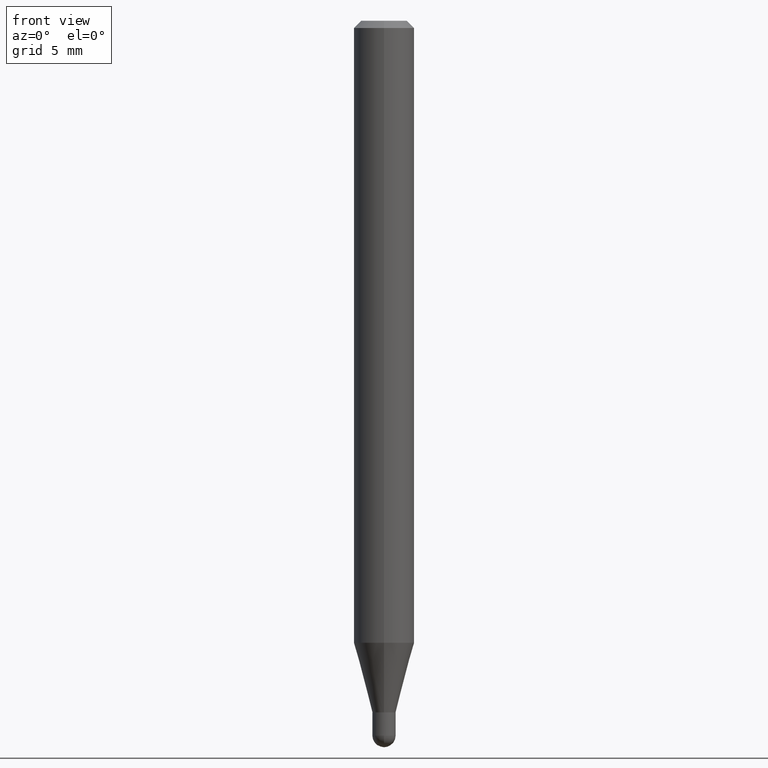
[diagram: clean part render]
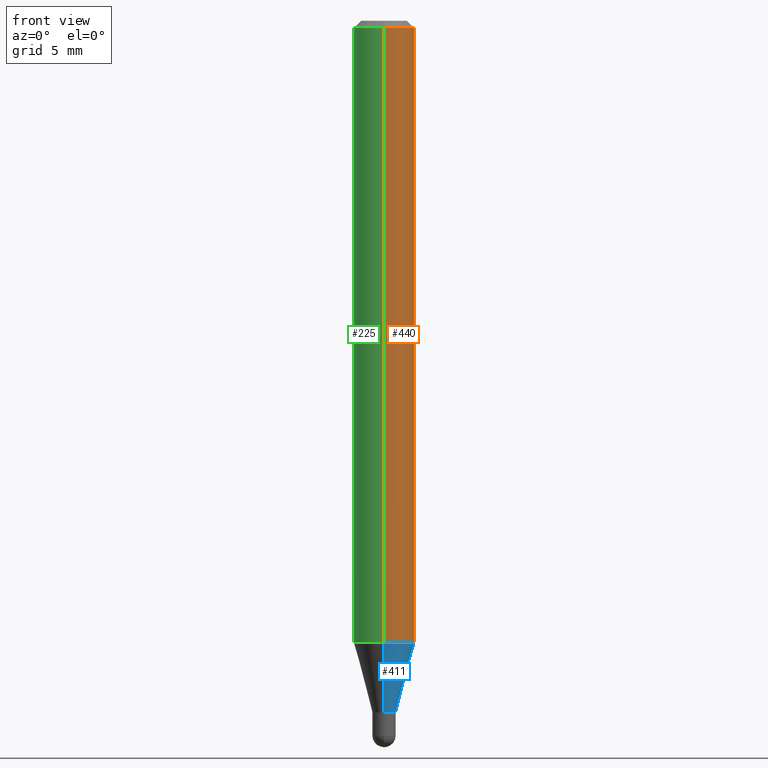
[diagram: same view with three faces highlighted in distinct colors, each labeled with its STEP entity id]
A machine part, front view with three faces highlighted in distinct colors.
Their STEP definitions:

[orange] entity #440 — the highlighted cylindrical surface (edge-blend (fillet) strip) has radius 1.5875 mm, axis along (-0, 0, 1).
#51 = DIRECTION ( 'NONE',  ( -2.445464073693033846E-29, 3.491488116041193257E-15, 1.000000000000000000 ) ) ;
#53 = ORIENTED_EDGE ( 'NONE', *, *, #334, .T. ) ;
#56 = AXIS2_PLACEMENT_3D ( 'NONE', #116, #495, #339 ) ;
#74 = VERTEX_POINT ( 'NONE', #78 ) ;
#78 = CARTESIAN_POINT ( 'NONE',  ( 4.440892098500941706E-16, 0.06249999999999995143, -0.01500000000000022669 ) ) ;
#85 = CIRCLE ( 'NONE', #56, 0.06250000000000000000 ) ;
#89 = CARTESIAN_POINT ( 'NONE',  ( -4.364351673553916201E-16, -0.06250000000000000000, 2.182180072525745786E-16 ) ) ;
#96 = DIRECTION ( 'NONE',  ( -6.982962677686265922E-15, -1.000000000000000000, 3.491488116041193257E-15 ) ) ;
#102 = EDGE_LOOP ( 'NONE', ( #212, #53, #143, #117 ) ) ;
#116 = CARTESIAN_POINT ( 'NONE',  ( 3.668196110539553397E-31, -5.237232174061793509E-17, -0.01500000000000000812 ) ) ;
#117 = ORIENTED_EDGE ( 'NONE', *, *, #349, .F. ) ;
#143 = ORIENTED_EDGE ( 'NONE', *, *, #511, .F. ) ;
#149 = VECTOR ( 'NONE', #236, 39.37007874015748143 ) ;
#188 = VERTEX_POINT ( 'NONE', #430 ) ;
#200 = DIRECTION ( 'NONE',  ( -2.445464073693033846E-29, 3.491488116041193651E-15, 1.000000000000000000 ) ) ;
#212 = ORIENTED_EDGE ( 'NONE', *, *, #374, .T. ) ;
#236 = DIRECTION ( 'NONE',  ( -2.445464073693033846E-29, 3.491488116041193651E-15, 1.000000000000000000 ) ) ;
#253 = VERTEX_POINT ( 'NONE', #319 ) ;
#273 = AXIS2_PLACEMENT_3D ( 'NONE', #366, #285, #96 ) ;
#285 = DIRECTION ( 'NONE',  ( -2.445464073693033846E-29, 3.491488116041193257E-15, 1.000000000000000000 ) ) ;
#308 = DIRECTION ( 'NONE',  ( -6.982962677686265922E-15, -1.000000000000000000, 4.370956789862821150E-15 ) ) ;
#316 = AXIS2_PLACEMENT_3D ( 'NONE', #397, #51, #308 ) ;
#319 = CARTESIAN_POINT ( 'NONE',  ( -4.364351673553603615E-16, -0.06250000000000449640, -1.284316043908602767 ) ) ;
#324 = CYLINDRICAL_SURFACE ( 'NONE', #273, 0.06250000000000000000 ) ;
#330 = VERTEX_POINT ( 'NONE', #512 ) ;
#334 = EDGE_CURVE ( 'NONE', #188, #74, #478, .T. ) ;
#339 = DIRECTION ( 'NONE',  ( -6.982962677686265922E-15, -1.000000000000000000, 3.483106191921935554E-15 ) ) ;
#340 = CIRCLE ( 'NONE', #316, 0.06250000000000000000 ) ;
#349 = EDGE_CURVE ( 'NONE', #253, #330, #354, .T. ) ;
#354 = LINE ( 'NONE', #89, #149 ) ;
#366 = CARTESIAN_POINT ( 'NONE',  ( 0.000000000000000000, 0.000000000000000000, 0.000000000000000000 ) ) ;
#374 = EDGE_CURVE ( 'NONE', #253, #188, #340, .T. ) ;
#397 = CARTESIAN_POINT ( 'NONE',  ( 3.140748744646054183E-29, -4.484174204547925592E-15, -1.284316043908602989 ) ) ;
#403 = FACE_OUTER_BOUND ( 'NONE', #102, .T. ) ;
#427 = CARTESIAN_POINT ( 'NONE',  ( 4.440892098500625669E-16, 0.06250000000000000000, -2.182180072525745786E-16 ) ) ;
#430 = CARTESIAN_POINT ( 'NONE',  ( 4.440892098500937762E-16, 0.06249999999999550360, -1.284316043908603211 ) ) ;
#440 = ADVANCED_FACE ( 'NONE', ( #403 ), #324, .T. ) ;
#478 = LINE ( 'NONE', #427, #497 ) ;
#495 = DIRECTION ( 'NONE',  ( -2.445464073693033846E-29, 3.491488116041193257E-15, 1.000000000000000000 ) ) ;
#497 = VECTOR ( 'NONE', #200, 39.37007874015748143 ) ;
#511 = EDGE_CURVE ( 'NONE', #330, #74, #85, .T. ) ;
#512 = CARTESIAN_POINT ( 'NONE',  ( -4.364351673553912750E-16, -0.06250000000000005551, -0.01499999999999979128 ) ) ;

[blue] entity #411 — the highlighted conical surface has half-angle 15 deg.
#17 = FACE_OUTER_BOUND ( 'NONE', #182, .T. ) ;
#51 = DIRECTION ( 'NONE',  ( -2.445464073693033846E-29, 3.491488116041193257E-15, 1.000000000000000000 ) ) ;
#79 = VERTEX_POINT ( 'NONE', #425 ) ;
#82 = CARTESIAN_POINT ( 'NONE',  ( 3.073097332162762918E-16, 0.02399999999999493164, -1.428000000000000158 ) ) ;
#84 = CARTESIAN_POINT ( 'NONE',  ( 3.492122697233653173E-29, -4.985845029706825030E-15, -1.428000000000000158 ) ) ;
#100 = CONICAL_SURFACE ( 'NONE', #400, 0.02399999999999991723, 0.2617993877991579010 ) ;
#136 = ORIENTED_EDGE ( 'NONE', *, *, #506, .T. ) ;
#140 = EDGE_CURVE ( 'NONE', #79, #253, #164, .T. ) ;
#142 = AXIS2_PLACEMENT_3D ( 'NONE', #84, #394, #311 ) ;
#164 = LINE ( 'NONE', #231, #203 ) ;
#176 = DIRECTION ( 'NONE',  ( -2.445464073693033846E-29, 3.491488116041193257E-15, 1.000000000000000000 ) ) ;
#182 = EDGE_LOOP ( 'NONE', ( #197, #136, #424, #196 ) ) ;
#188 = VERTEX_POINT ( 'NONE', #430 ) ;
#196 = ORIENTED_EDGE ( 'NONE', *, *, #140, .F. ) ;
#197 = ORIENTED_EDGE ( 'NONE', *, *, #204, .T. ) ;
#203 = VECTOR ( 'NONE', #361, 39.37007874015748854 ) ;
#204 = EDGE_CURVE ( 'NONE', #79, #323, #407, .T. ) ;
#213 = DIRECTION ( 'NONE',  ( -6.982962677686266711E-15, -1.000000000000000000, 0.000000000000000000 ) ) ;
#215 = CARTESIAN_POINT ( 'NONE',  ( 3.492122697233653173E-29, -4.985845029706825030E-15, -1.428000000000000158 ) ) ;
#231 = CARTESIAN_POINT ( 'NONE',  ( -1.675911042644348836E-16, -0.02400000000000490283, -1.428000000000000158 ) ) ;
#253 = VERTEX_POINT ( 'NONE', #319 ) ;
#256 = LINE ( 'NONE', #423, #428 ) ;
#308 = DIRECTION ( 'NONE',  ( -6.982962677686265922E-15, -1.000000000000000000, 4.370956789862821150E-15 ) ) ;
#311 = DIRECTION ( 'NONE',  ( -6.982962677686266711E-15, -1.000000000000000000, 0.000000000000000000 ) ) ;
#316 = AXIS2_PLACEMENT_3D ( 'NONE', #397, #51, #308 ) ;
#319 = CARTESIAN_POINT ( 'NONE',  ( -4.364351673553603615E-16, -0.06250000000000449640, -1.284316043908602767 ) ) ;
#323 = VERTEX_POINT ( 'NONE', #82 ) ;
#340 = CIRCLE ( 'NONE', #316, 0.06250000000000000000 ) ;
#343 = DIRECTION ( 'NONE',  ( 1.839019923739652775E-15, 0.2588190451025323413, 0.9659258262890650926 ) ) ;
#361 = DIRECTION ( 'NONE',  ( -1.807323732225381810E-15, -0.2588190451025255689, 0.9659258262890669799 ) ) ;
#374 = EDGE_CURVE ( 'NONE', #253, #188, #340, .T. ) ;
#394 = DIRECTION ( 'NONE',  ( -2.445464073693033846E-29, 3.491488116041193257E-15, 1.000000000000000000 ) ) ;
#397 = CARTESIAN_POINT ( 'NONE',  ( 3.140748744646054183E-29, -4.484174204547925592E-15, -1.284316043908602989 ) ) ;
#400 = AXIS2_PLACEMENT_3D ( 'NONE', #215, #176, #213 ) ;
#407 = CIRCLE ( 'NONE', #142, 0.02399999999999991723 ) ;
#411 = ADVANCED_FACE ( 'NONE', ( #17 ), #100, .T. ) ;
#423 = CARTESIAN_POINT ( 'NONE',  ( 1.705302565824583390E-16, 0.02399999999999493164, -1.428000000000000158 ) ) ;
#424 = ORIENTED_EDGE ( 'NONE', *, *, #374, .F. ) ;
#425 = CARTESIAN_POINT ( 'NONE',  ( -1.675911042644348836E-16, -0.02400000000000490283, -1.428000000000000158 ) ) ;
#428 = VECTOR ( 'NONE', #343, 39.37007874015748143 ) ;
#430 = CARTESIAN_POINT ( 'NONE',  ( 4.440892098500937762E-16, 0.06249999999999550360, -1.284316043908603211 ) ) ;
#506 = EDGE_CURVE ( 'NONE', #323, #188, #256, .T. ) ;

[green] entity #225 — the highlighted cylindrical surface (edge-blend (fillet) strip) has radius 1.5875 mm, axis along (-0, 0, 1).
#2 = DIRECTION ( 'NONE',  ( -2.445464073693033846E-29, 3.491488116041193257E-15, 1.000000000000000000 ) ) ;
#5 = AXIS2_PLACEMENT_3D ( 'NONE', #389, #2, #161 ) ;
#45 = FACE_OUTER_BOUND ( 'NONE', #307, .T. ) ;
#55 = ORIENTED_EDGE ( 'NONE', *, *, #184, .F. ) ;
#74 = VERTEX_POINT ( 'NONE', #78 ) ;
#78 = CARTESIAN_POINT ( 'NONE',  ( 4.440892098500941706E-16, 0.06249999999999995143, -0.01500000000000022669 ) ) ;
#89 = CARTESIAN_POINT ( 'NONE',  ( -4.364351673553916201E-16, -0.06250000000000000000, 2.182180072525745786E-16 ) ) ;
#126 = DIRECTION ( 'NONE',  ( -2.445464073693033846E-29, 3.491488116041193257E-15, 1.000000000000000000 ) ) ;
#149 = VECTOR ( 'NONE', #236, 39.37007874015748143 ) ;
#158 = CARTESIAN_POINT ( 'NONE',  ( 3.140748744646054183E-29, -4.484174204547925592E-15, -1.284316043908602989 ) ) ;
#161 = DIRECTION ( 'NONE',  ( -6.982962677686265922E-15, -1.000000000000000000, 3.483106191921935554E-15 ) ) ;
#184 = EDGE_CURVE ( 'NONE', #74, #330, #250, .T. ) ;
#188 = VERTEX_POINT ( 'NONE', #430 ) ;
#198 = DIRECTION ( 'NONE',  ( -2.445464073693033846E-29, 3.491488116041193257E-15, 1.000000000000000000 ) ) ;
#200 = DIRECTION ( 'NONE',  ( -2.445464073693033846E-29, 3.491488116041193651E-15, 1.000000000000000000 ) ) ;
#225 = ADVANCED_FACE ( 'NONE', ( #45 ), #479, .T. ) ;
#228 = ORIENTED_EDGE ( 'NONE', *, *, #334, .F. ) ;
#236 = DIRECTION ( 'NONE',  ( -2.445464073693033846E-29, 3.491488116041193651E-15, 1.000000000000000000 ) ) ;
#238 = AXIS2_PLACEMENT_3D ( 'NONE', #158, #126, #472 ) ;
#244 = ORIENTED_EDGE ( 'NONE', *, *, #349, .T. ) ;
#250 = CIRCLE ( 'NONE', #5, 0.06250000000000000000 ) ;
#253 = VERTEX_POINT ( 'NONE', #319 ) ;
#293 = ORIENTED_EDGE ( 'NONE', *, *, #357, .T. ) ;
#307 = EDGE_LOOP ( 'NONE', ( #228, #293, #244, #55 ) ) ;
#317 = AXIS2_PLACEMENT_3D ( 'NONE', #477, #198, #473 ) ;
#319 = CARTESIAN_POINT ( 'NONE',  ( -4.364351673553603615E-16, -0.06250000000000449640, -1.284316043908602767 ) ) ;
#327 = CIRCLE ( 'NONE', #238, 0.06250000000000000000 ) ;
#330 = VERTEX_POINT ( 'NONE', #512 ) ;
#334 = EDGE_CURVE ( 'NONE', #188, #74, #478, .T. ) ;
#349 = EDGE_CURVE ( 'NONE', #253, #330, #354, .T. ) ;
#354 = LINE ( 'NONE', #89, #149 ) ;
#357 = EDGE_CURVE ( 'NONE', #188, #253, #327, .T. ) ;
#389 = CARTESIAN_POINT ( 'NONE',  ( 3.668196110539553397E-31, -5.237232174061793509E-17, -0.01500000000000000812 ) ) ;
#427 = CARTESIAN_POINT ( 'NONE',  ( 4.440892098500625669E-16, 0.06250000000000000000, -2.182180072525745786E-16 ) ) ;
#430 = CARTESIAN_POINT ( 'NONE',  ( 4.440892098500937762E-16, 0.06249999999999550360, -1.284316043908603211 ) ) ;
#472 = DIRECTION ( 'NONE',  ( -6.982962677686265922E-15, -1.000000000000000000, 4.370956789862821150E-15 ) ) ;
#473 = DIRECTION ( 'NONE',  ( -6.982962677686265922E-15, -1.000000000000000000, 3.491488116041193257E-15 ) ) ;
#477 = CARTESIAN_POINT ( 'NONE',  ( 0.000000000000000000, 0.000000000000000000, 0.000000000000000000 ) ) ;
#478 = LINE ( 'NONE', #427, #497 ) ;
#479 = CYLINDRICAL_SURFACE ( 'NONE', #317, 0.06250000000000000000 ) ;
#497 = VECTOR ( 'NONE', #200, 39.37007874015748143 ) ;
#512 = CARTESIAN_POINT ( 'NONE',  ( -4.364351673553912750E-16, -0.06250000000000005551, -0.01499999999999979128 ) ) ;